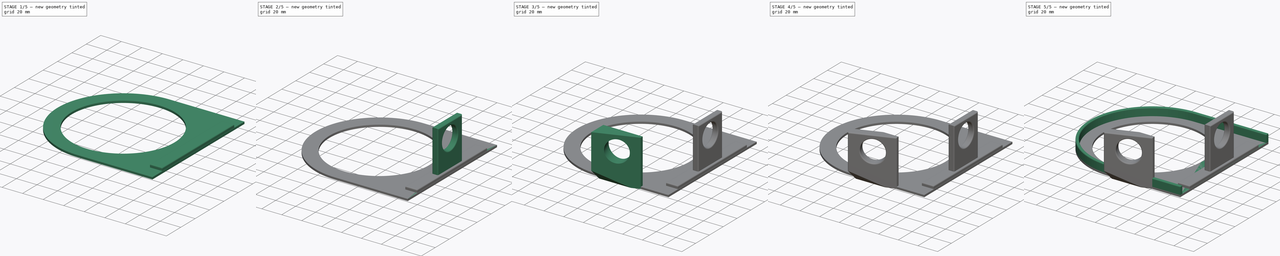
[diagram: build sequence overview — one tinted view per stage of 5, left to right]
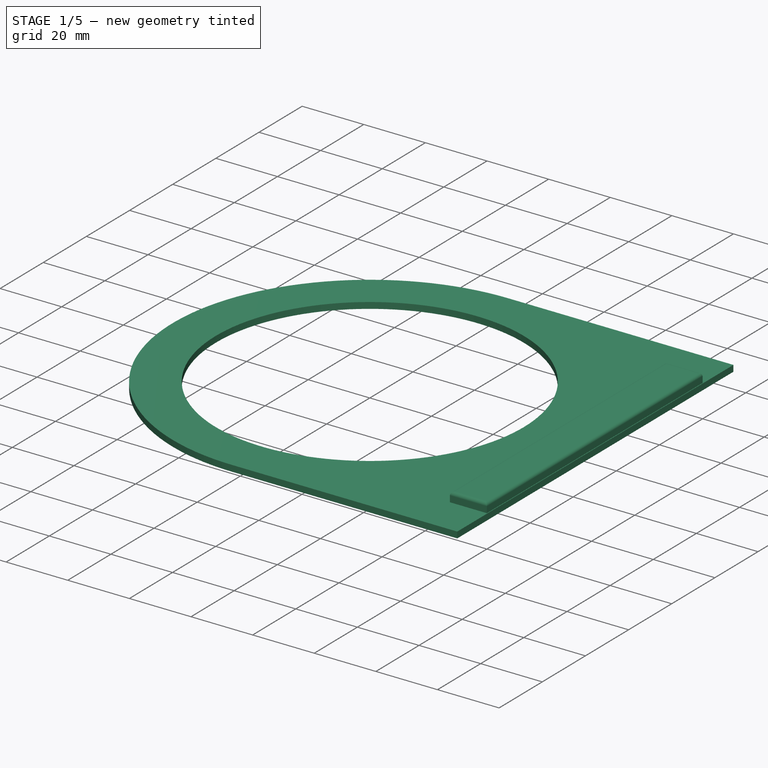
[diagram: stage 1 of 5 — iso view after this stage's code; geometry added in this stage tinted green]
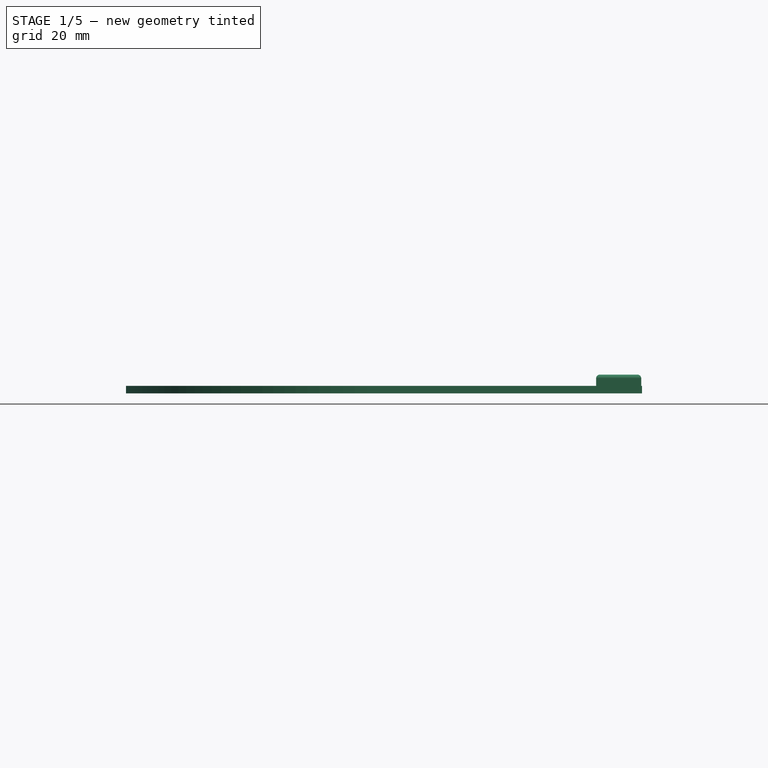
[diagram: stage 1 of 5 — front view after this stage's code; geometry added in this stage tinted green]
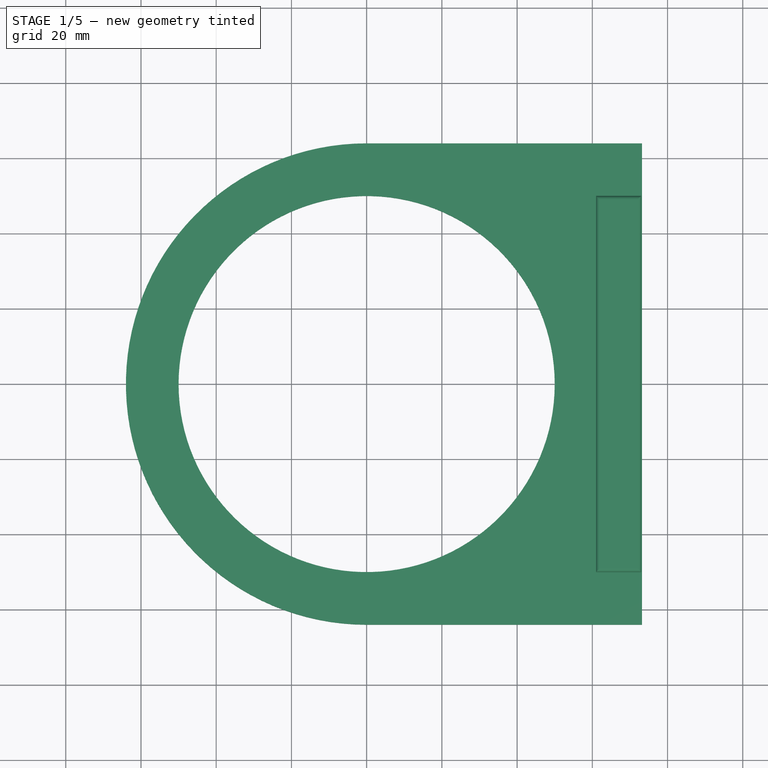
[diagram: stage 1 of 5 — top view after this stage's code; geometry added in this stage tinted green]
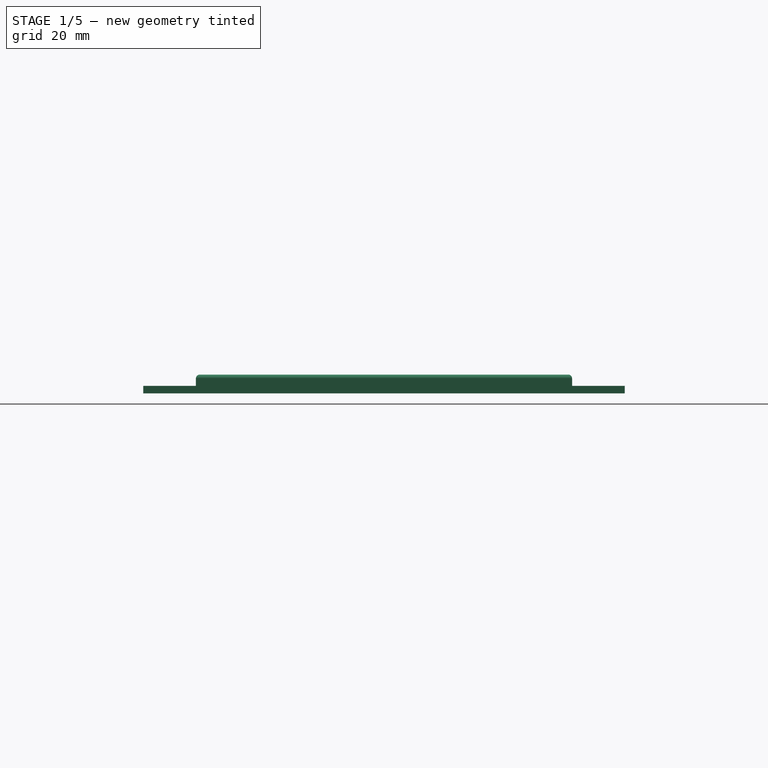
[diagram: stage 1 of 5 — right view after this stage's code; geometry added in this stage tinted green]
FCSTD DOCUMENT  (FreeCAD 0.16R)
Label: chainguard25T.03
License: All rights reserved
LicenseURL: http://en.wikipedia.org/wiki/All_rights_reserved
objects: Sketcher::SketchObject×9, PartDesign::Fillet×8, PartDesign::Pad×5, PartDesign::Pocket×4
note: 35 computed .brp shape members not serialized (recipe doc carries the construction recipe); baked Part::Feature solids carry a one-line shape summary decoded from their .brp

FEATURE [Sketcher::SketchObject] Sketch001
  sketch-geometry (5):
    g0: LineSegment StartX=73.2073 StartY=64 StartZ=0 EndX=-2.4e-11 EndY=64 EndZ=0
    g1: LineSegment StartX=73.2073 StartY=-64 StartZ=0 EndX=3e-12 EndY=-64 EndZ=0
    g2: ArcOfCircle CenterX=-7.71025e-07 CenterY=0 CenterZ=0 NormalX=0 NormalY=0 NormalZ=1 Radius=64 StartAngle=1.5708 EndAngle=4.71239
    g3: LineSegment StartX=73.2073 StartY=64 StartZ=0 EndX=73.2073 EndY=-64 EndZ=0
    g4: Circle CenterX=0 CenterY=0 CenterZ=0 NormalX=0 NormalY=0 NormalZ=1 Radius=50
  constraints (13):
    c: Horizontal(g0)
    c: Horizontal(g1)
    c: Coincident(g2,g1)
    c: Coincident(g0,g2)
    c: DistanceX(g1,g0) = 0
    c: Equal(g0,g1)
    c: DistanceY(g1,g0) = 128
    c: Radius(g2) = 64
    c: Vertical(g3)
    c: Coincident(g1,g3)
    c: Symmetric(g1,g0,g-1)
    c: Radius(g4) = 50
    c: Coincident(g4,g-1)
FEATURE [PartDesign::Pad] Pad  label="Faceplate"
  Length = 2
  Length2 = 100
  Reversed = true
  Sketch = -> Sketch001
  Type = 0
FEATURE [Sketcher::SketchObject] Sketch
  Support = -> Pad [Face6]
  sketch-geometry (4):
    g0: LineSegment StartX=63 StartY=50 StartZ=0 EndX=73 EndY=50 EndZ=0
    g1: LineSegment StartX=73 StartY=50 StartZ=0 EndX=73 EndY=-50 EndZ=0
    g2: LineSegment StartX=73 StartY=-50 StartZ=0 EndX=63 EndY=-50 EndZ=0
    g3: LineSegment StartX=63 StartY=-50 StartZ=0 EndX=63 EndY=50 EndZ=0
  constraints (12):
    c: Coincident(g0,g1)
    c: Coincident(g1,g2)
    c: Coincident(g2,g3)
    c: Coincident(g3,g0)
    c: Horizontal(g0)
    c: Horizontal(g2)
    c: Vertical(g1)
    c: Vertical(g3)
    c: DistanceX(g0,g0) = 10
    c: DistanceY(g3,g3) = 100
    c: DistanceY(g-1,g0) = 50
    c: DistanceX(g-1,g0) = 63
FEATURE [PartDesign::Pad] Pad004  label="SyncBossStiffener"
  Length = 3
  Length2 = 100
  Sketch = -> Sketch
  Type = 0
FEATURE [PartDesign::Fillet] Fillet007  label="SyncBossFillet"
  Base = -> Pad004 [Edge26,Edge25,Edge23,Edge20]
  Radius = 1
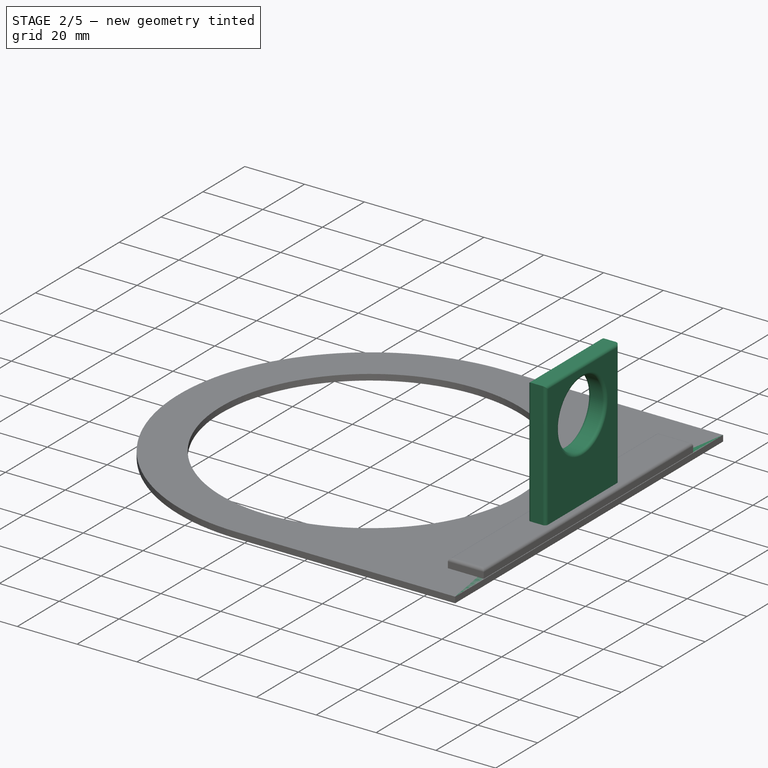
[diagram: stage 2 of 5 — iso view after this stage's code; geometry added in this stage tinted green]
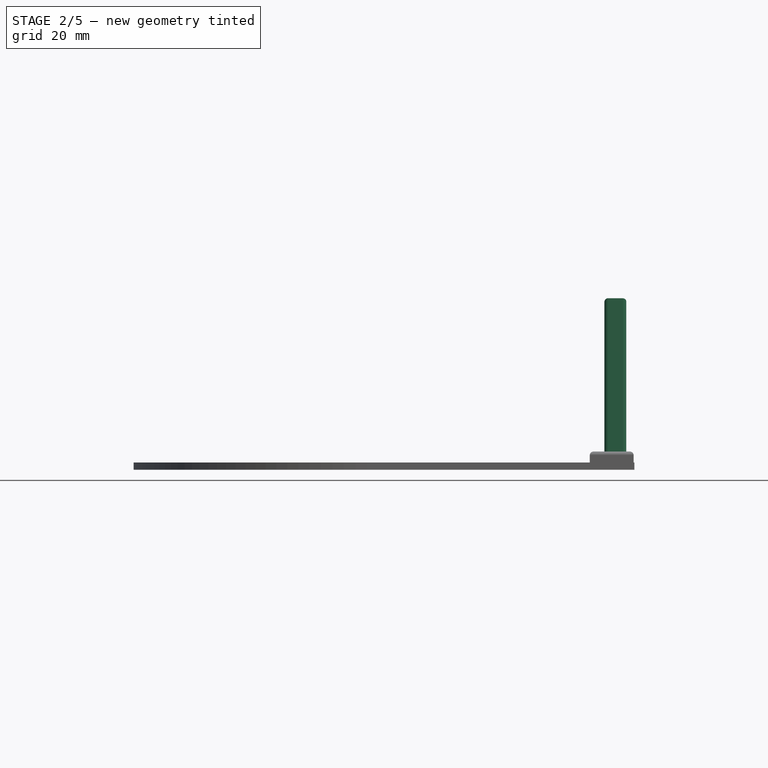
[diagram: stage 2 of 5 — front view after this stage's code; geometry added in this stage tinted green]
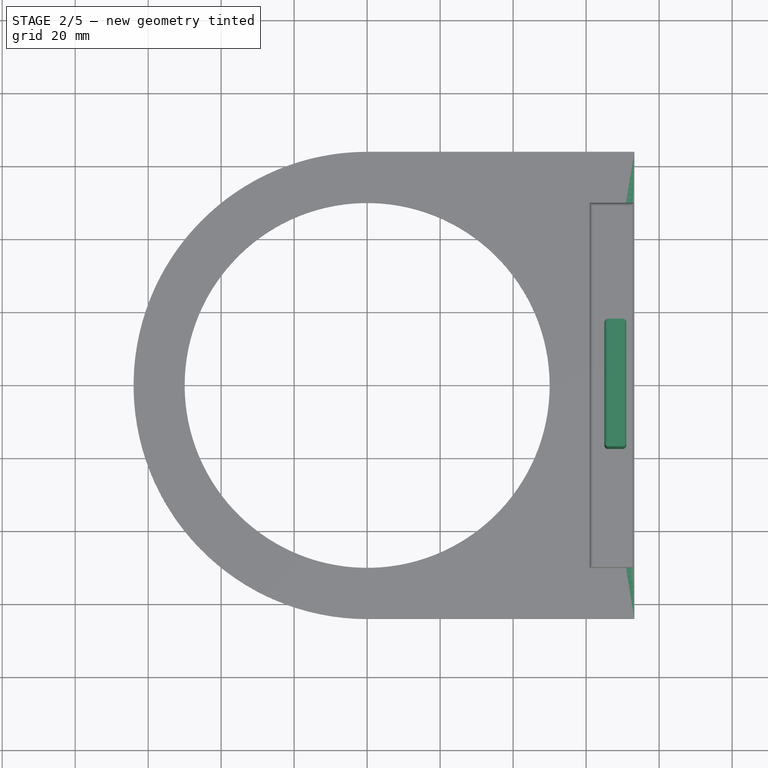
[diagram: stage 2 of 5 — top view after this stage's code; geometry added in this stage tinted green]
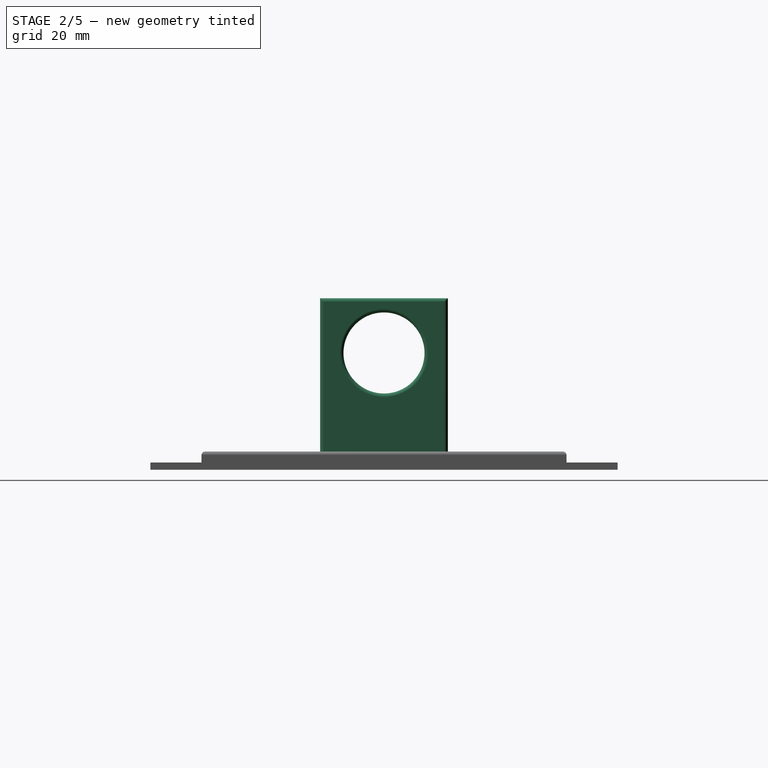
[diagram: stage 2 of 5 — right view after this stage's code; geometry added in this stage tinted green]
FEATURE [Sketcher::SketchObject] Sketch008
  Support = -> Pad [Face6]
  sketch-geometry (4):
    g0: LineSegment StartX=65 StartY=17.5 StartZ=0 EndX=71 EndY=17.5 EndZ=0
    g1: LineSegment StartX=71 StartY=17.5 StartZ=0 EndX=71 EndY=-17.5 EndZ=0
    g2: LineSegment StartX=71 StartY=-17.5 StartZ=0 EndX=65 EndY=-17.5 EndZ=0
    g3: LineSegment StartX=65 StartY=-17.5 StartZ=0 EndX=65 EndY=17.5 EndZ=0
  constraints (12):
    c: Coincident(g0,g1)
    c: Coincident(g1,g2)
    c: Coincident(g2,g3)
    c: Coincident(g3,g0)
    c: Horizontal(g0)
    c: Horizontal(g2)
    c: Vertical(g1)
    c: Vertical(g3)
    c: Distance(g1) = 35
    c: Distance(g0) = 6
    c: DistanceY(g2,g-1) = 17.5
    c: DistanceX(g-1,g2) = 65
FEATURE [PartDesign::Pad] Pad003  label="SyncTubeBoss"
  Length = 45
  Length2 = 100
  Sketch = -> Sketch008
  Type = 0
FEATURE [Sketcher::SketchObject] Sketch009
  Placement = pos=(71,0,0) rot=(0.57735,0.57735,0.57735;2.0944rad)
  Support = -> Pad003 [Face9]
  sketch-geometry (1):
    g0: Circle CenterX=0 CenterY=30 CenterZ=0 NormalX=0 NormalY=0 NormalZ=1 Radius=11.1
  constraints (3):
    c: Radius(g0) = 11.1
    c: Distance(g-1,g0) = 30
    c: DistanceX(g-1,g0) = 0
FEATURE [PartDesign::Pocket] Pocket003  label="SyncTubeHole"
  Length = 5
  Sketch = -> Sketch009
  Type = 1
FEATURE [PartDesign::Fillet] Fillet002
  Base = -> Pocket003 [Edge25,Edge14,Edge26,Edge23,Edge27]
  Radius = 1
FEATURE [PartDesign::Fillet] Fillet006
  Base = -> Fillet002 [Edge13,Edge3,Edge18,Edge19,Edge20]
  Radius = 1
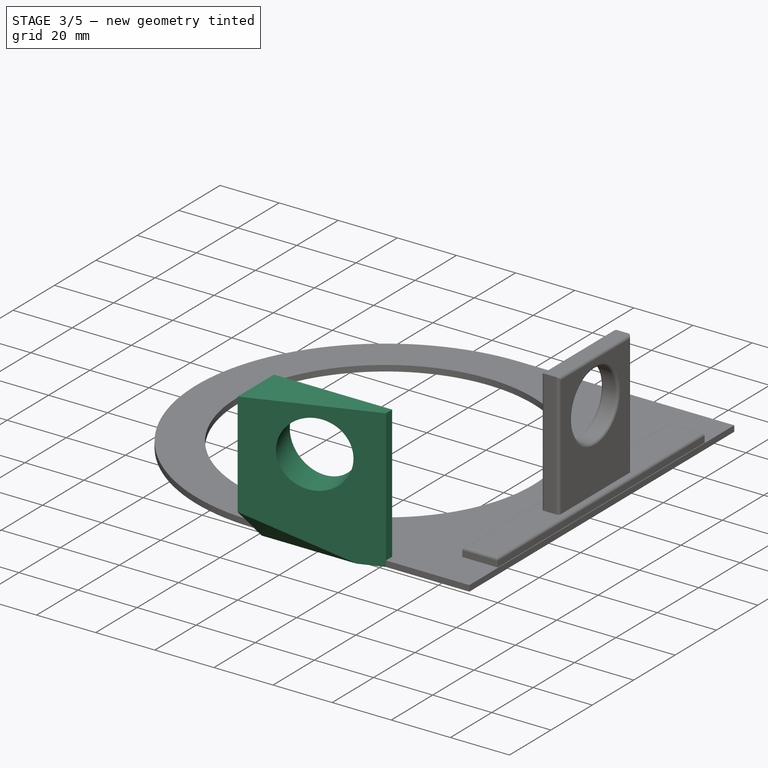
[diagram: stage 3 of 5 — iso view after this stage's code; geometry added in this stage tinted green]
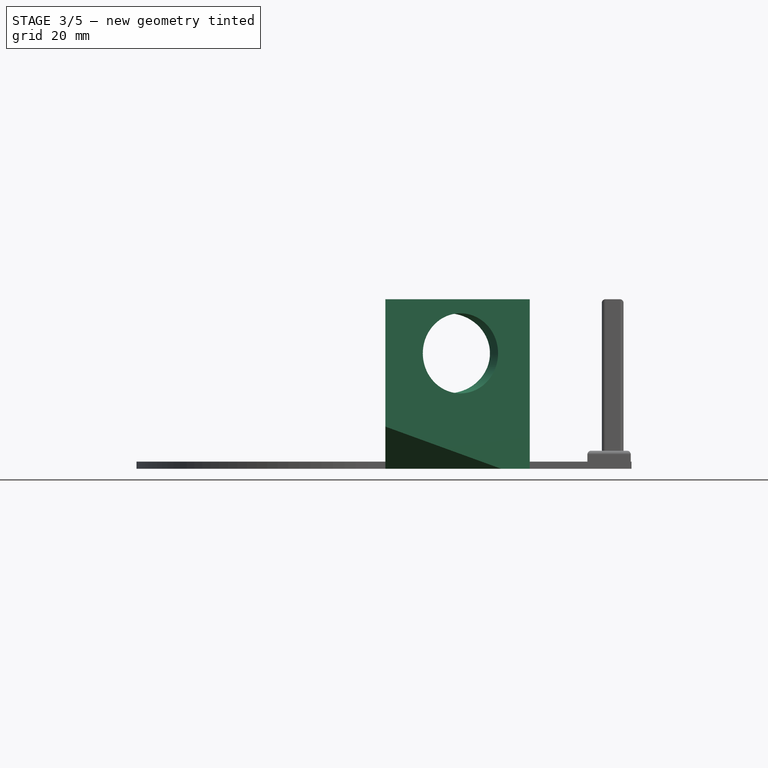
[diagram: stage 3 of 5 — front view after this stage's code; geometry added in this stage tinted green]
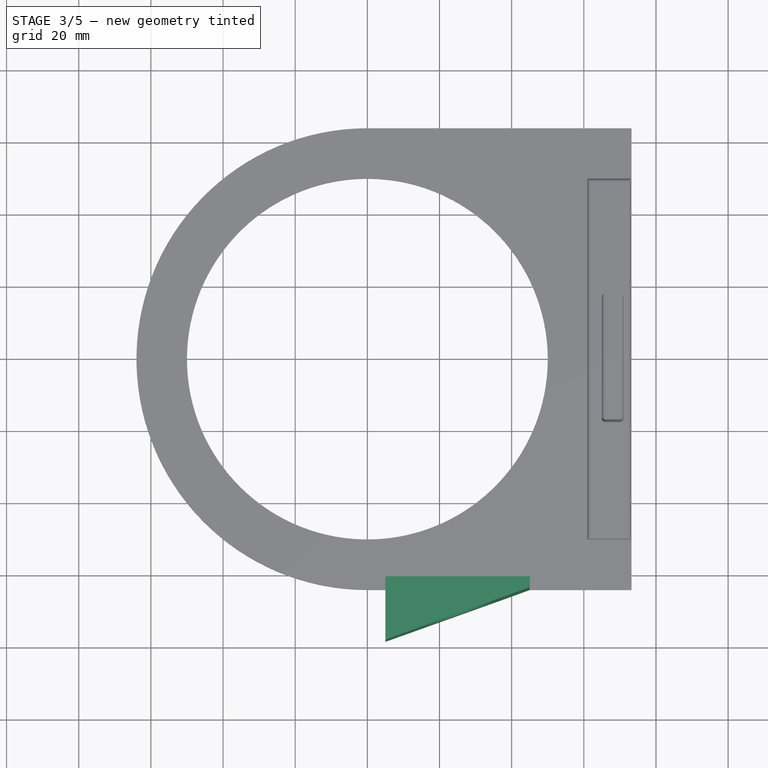
[diagram: stage 3 of 5 — top view after this stage's code; geometry added in this stage tinted green]
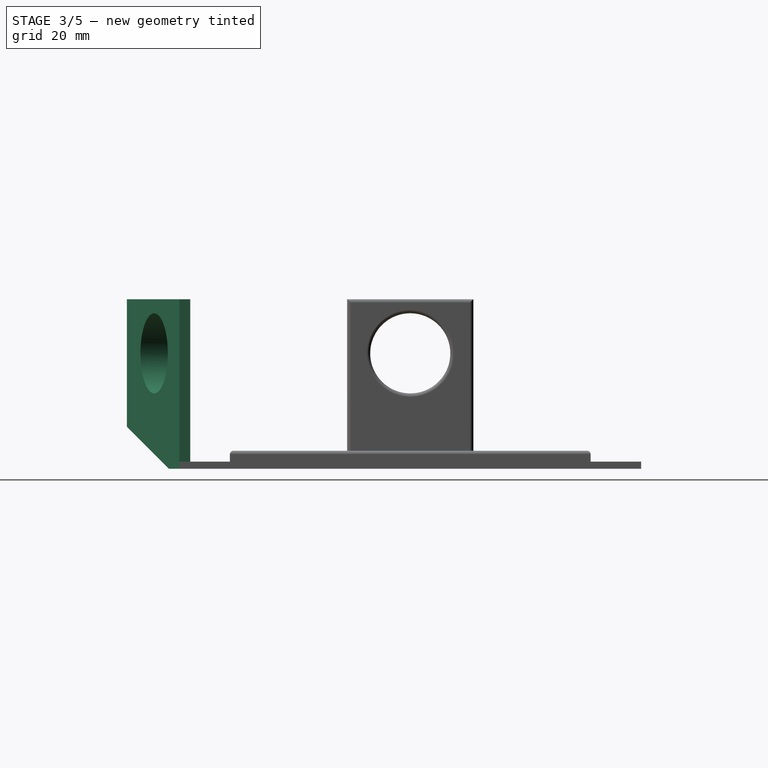
[diagram: stage 3 of 5 — right view after this stage's code; geometry added in this stage tinted green]
FEATURE [Sketcher::SketchObject] Sketch004  label="BossST"
  sketch-geometry (4):
    g0: LineSegment StartX=45 StartY=-61 StartZ=0 EndX=5 EndY=-61 EndZ=0
    g1: LineSegment StartX=5 StartY=-61 StartZ=0 EndX=5 EndY=-78.5588 EndZ=0
    g2: LineSegment StartX=45 StartY=-64 StartZ=0 EndX=45 EndY=-61 EndZ=0
    g3: LineSegment StartX=5 StartY=-78.5588 StartZ=0 EndX=45 EndY=-64 EndZ=0
  constraints (12):
    c: Coincident(g0,g1)
    c: Vertical(g1)
    c: Vertical(g2)
    c: DistanceX(g0,g0) = 40
    c: DistanceX(g-1,g1) = 5
    c: Angle(g3) = 0.349066
    c: DistanceY(g0,g-1) = 61
    c: Horizontal(g0)
    c: DistanceY(g2,g2) = 3
    c: Coincident(g2,g0)
    c: Coincident(g3,g2)
    c: Coincident(g1,g3)
FEATURE [PartDesign::Pad] Pad002  label="STboss"
  Length = 45
  Length2 = 2
  Sketch = -> Sketch004
  Type = 4
FEATURE [Sketcher::SketchObject] Sketch005
  Placement = pos=(25.8332,-70.9761,0) rot=(0.970288,0.171088,0.171088;1.60095rad)
  Support = -> Pad002 [Face3]
  sketch-geometry (1):
    g0: Circle CenterX=-0.0348267 CenterY=30 CenterZ=0 NormalX=0 NormalY=0 NormalZ=1 Radius=11.1
  constraints (2):
    c: Radius(g0) = 11.1
    c: DistanceY(g-1,g0) = 30
FEATURE [PartDesign::Pocket] Pocket  label="SThole"
  Length = 5
  Sketch = -> Sketch005
  Type = 1
FEATURE [Sketcher::SketchObject] Sketch006
  Placement = pos=(5,0,0) rot=(0.57735,-0.57735,-0.57735;2.0944rad)
  Support = -> Pocket [Face5]
  sketch-geometry (4):
    g0: LineSegment StartX=54.9217 StartY=-13.9475 StartZ=0 EndX=105.758 EndY=-27.5691 EndZ=0
    g1: LineSegment StartX=105.758 StartY=-27.5691 StartZ=0 EndX=92.1366 EndY=23.2674 EndZ=0
    g2: LineSegment StartX=92.1366 StartY=23.2674 StartZ=0 EndX=54.9217 EndY=-13.9475 EndZ=0
    g3: Circle [constr] CenterX=84.2722 CenterY=-6.08307 CenterZ=0 NormalX=0 NormalY=0 NormalZ=1 Radius=30.3858
  constraints (12):
    c: Coincident(g0,g1)
    c: Coincident(g1,g2)
    c: Coincident(g2,g0)
    c: Equal(g0,g1)
    c: Equal(g0,g2)
    c: PointOnObject(g0,g3)
    c: PointOnObject(g1,g3)
    c: PointOnObject(g2,g3)
    c: Angle(g2) = -2.35619
    c: Distance(g2) = 52.6298
    c: DistanceX(g-1,g0) = 54.9217
    c: DistanceY(g0,g-1) = 13.9475
FEATURE [PartDesign::Pocket] Pocket001  label="STpocket0"
  Length = 5
  Sketch = -> Sketch006
  Type = 1
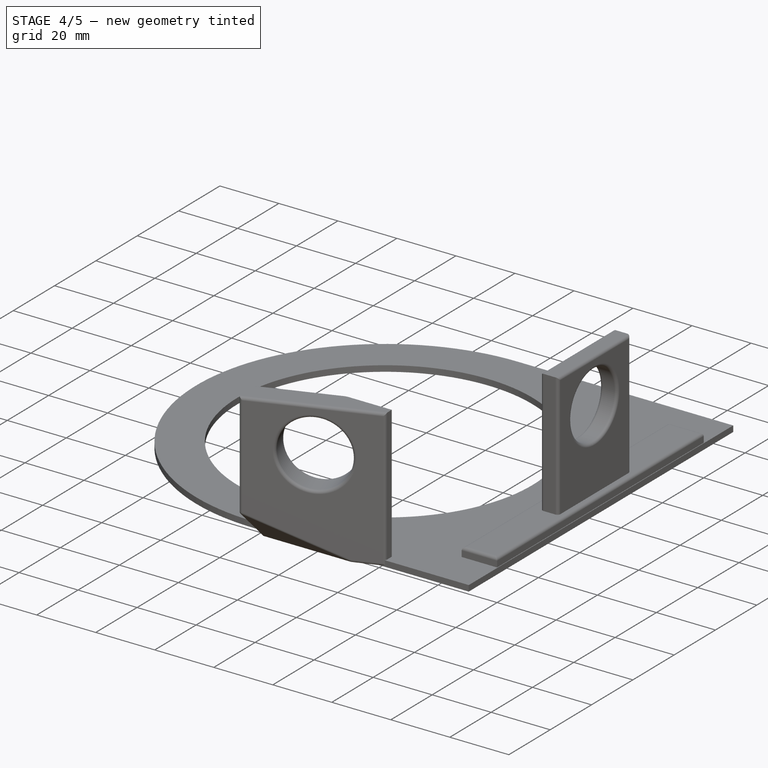
[diagram: stage 4 of 5 — iso view after this stage's code; geometry added in this stage tinted green]
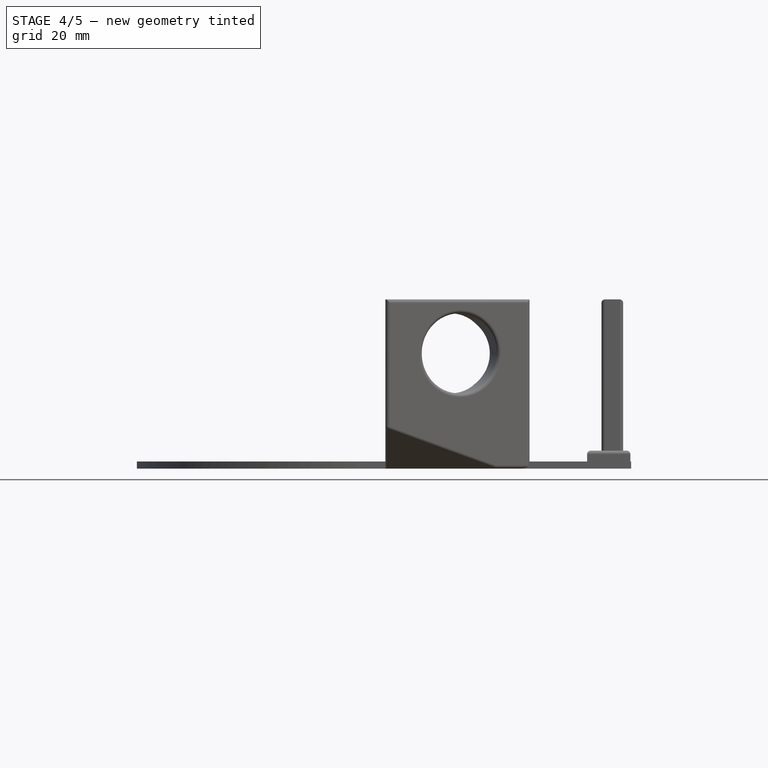
[diagram: stage 4 of 5 — front view after this stage's code; geometry added in this stage tinted green]
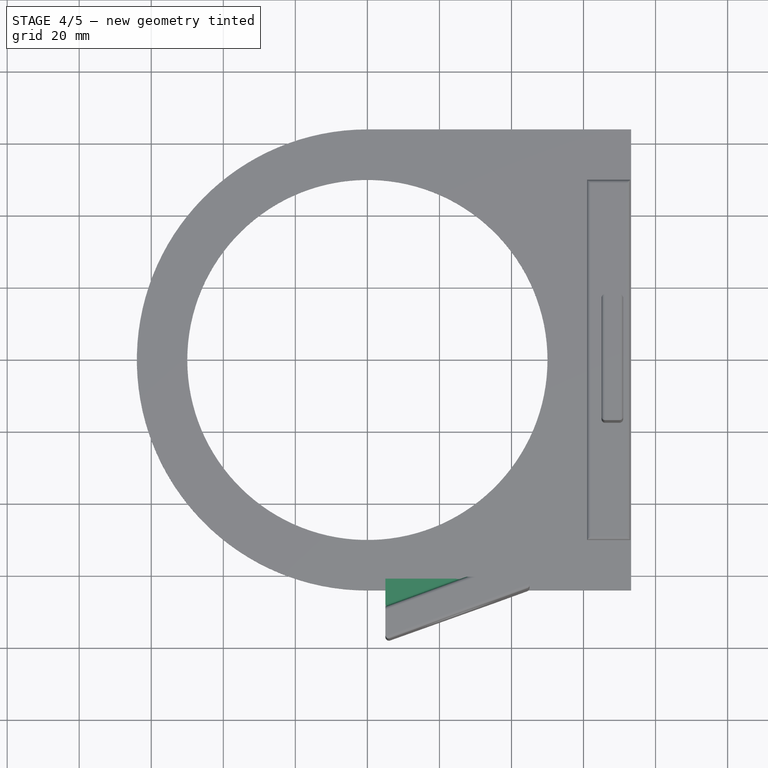
[diagram: stage 4 of 5 — top view after this stage's code; geometry added in this stage tinted green]
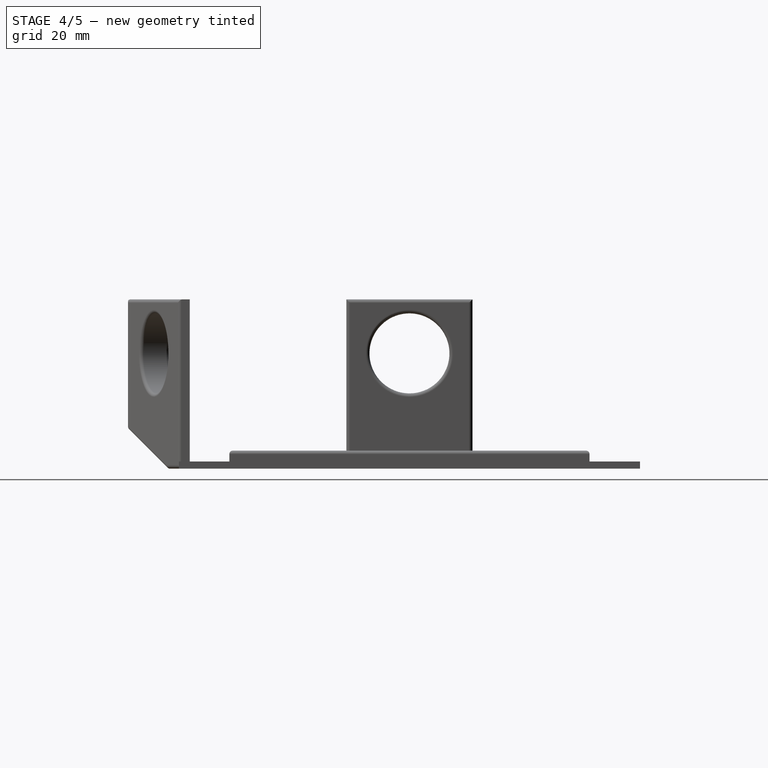
[diagram: stage 4 of 5 — right view after this stage's code; geometry added in this stage tinted green]
FEATURE [Sketcher::SketchObject] Sketch007
  ExternalGeometry = -> [Pocket001]
  Placement = pos=(0,0,45) rot=(0,0,1;0rad)
  Support = -> Pocket001 [Face4]
  sketch-geometry (4):
    g0: LineSegment StartX=-4.66376 StartY=-54.3774 StartZ=0 EndX=-2.14442 EndY=-71.7516 EndZ=0
    g1: LineSegment StartX=-2.14442 StartY=-71.7516 StartZ=0 EndX=41.1328 EndY=-56 EndZ=0
    g2: LineSegment StartX=41.1328 StartY=-56 StartZ=0 EndX=37.1097 EndY=-55.1054 EndZ=0
    g3: LineSegment StartX=37.1097 StartY=-55.1054 StartZ=0 EndX=-4.66376 EndY=-54.3774 EndZ=0
  constraints (12):
    c: Coincident(g0,g1)
    c: Coincident(g1,g2)
    c: Coincident(g2,g3)
    c: Parallel(g1,g-3)
    c: DistanceY(g-3,g1) = 8
    c: Coincident(g0,g3)
    c: DistanceX(g1,g-3) = 3.86725
    c: Distance(g3) = 41.7798
    c: Distance(g0) = 17.5559
    c: Distance(g1) = 46.0546
    c: Distance(g2) = 4.12132
    c: DistanceX(g0,g-1) = 4.66376
FEATURE [PartDesign::Pocket] Pocket002  label="STpocket1"
  Length = 30
  Sketch = -> Sketch007
  Type = 0
FEATURE [PartDesign::Fillet] Fillet003
  Base = -> Pocket002 [Edge27,Edge11,Edge26,Edge25,Edge15,Edge23]
  Radius = 1
FEATURE [PartDesign::Fillet] Fillet004
  Base = -> Fillet003 [Edge22,Edge23,Edge4,Edge13]
  Radius = 1
FEATURE [PartDesign::Fillet] Fillet005
  Base = -> Fillet004 [Edge52,Edge27,Edge55,Edge24,Edge54,Edge35]
  Radius = 1
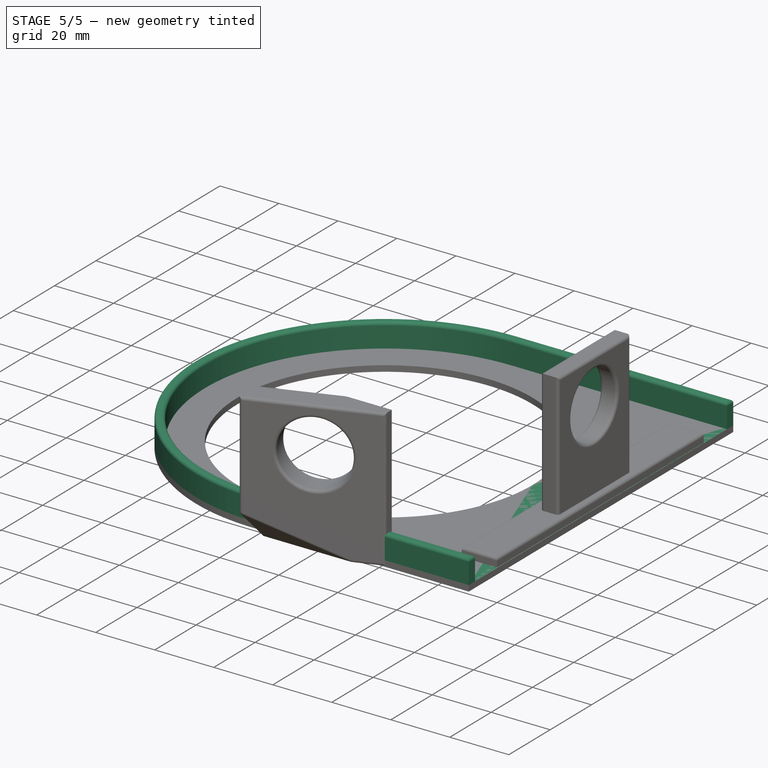
[diagram: stage 5 of 5 — iso view after this stage's code; geometry added in this stage tinted green]
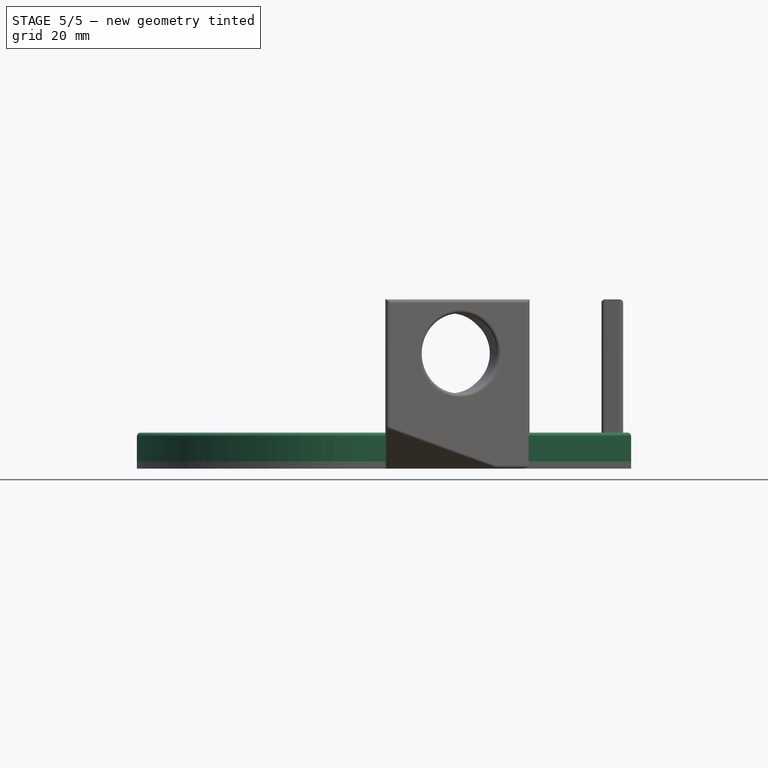
[diagram: stage 5 of 5 — front view after this stage's code; geometry added in this stage tinted green]
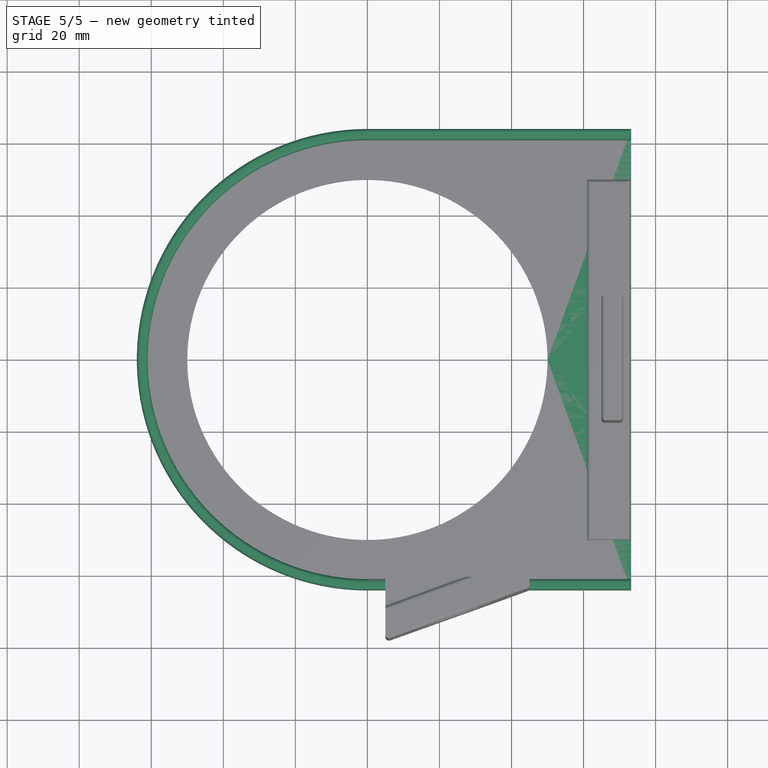
[diagram: stage 5 of 5 — top view after this stage's code; geometry added in this stage tinted green]
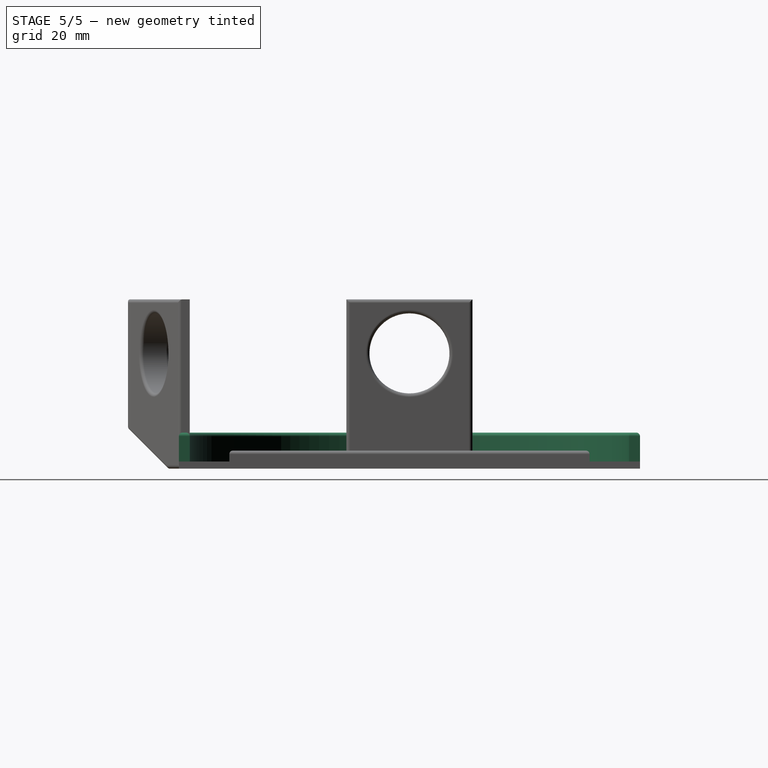
[diagram: stage 5 of 5 — right view after this stage's code; geometry added in this stage tinted green]
FEATURE [Sketcher::SketchObject] Sketch002
  sketch-geometry (8):
    g0: LineSegment StartX=73.202 StartY=64 StartZ=0 EndX=0 EndY=64 EndZ=0
    g1: LineSegment StartX=73.202 StartY=-64 StartZ=0 EndX=0 EndY=-64 EndZ=0
    g2: ArcOfCircle CenterX=3.13138e-06 CenterY=0 CenterZ=0 NormalX=0 NormalY=0 NormalZ=1 Radius=64 StartAngle=1.5708 EndAngle=4.71239
    g3: LineSegment StartX=0 StartY=61 StartZ=0 EndX=73.202 EndY=61 EndZ=0
    g4: LineSegment StartX=0 StartY=-61 StartZ=0 EndX=73.202 EndY=-61 EndZ=0
    g5: LineSegment StartX=73.202 StartY=64 StartZ=0 EndX=73.202 EndY=61 EndZ=0
    g6: LineSegment StartX=73.202 StartY=-61 StartZ=0 EndX=73.202 EndY=-64 EndZ=0
    g7: ArcOfCircle CenterX=-7.37069e-05 CenterY=0 CenterZ=0 NormalX=0 NormalY=0 NormalZ=1 Radius=61 StartAngle=1.5708 EndAngle=4.71239
  constraints (25):
    c: Horizontal(g0)
    c: Horizontal(g1)
    c: Coincident(g2,g1)
    c: Coincident(g0,g2)
    c: DistanceX(g1,g0) = 0
    c: Equal(g0,g1)
    c: DistanceY(g1,g0) = 128
    c: Radius(g2) = 64
    c: Symmetric(g1,g0,g-1)
    c: Radius(g7) = 61
    c: Parallel(g0,g3)
    c: DistanceY(g3,g0) = 3
    c: DistanceY(g1,g4) = 3
    c: Parallel(g4,g1)
    c: DistanceX(g0,g3) = 0
    c: DistanceX(g4) = 0
    c: DistanceX(g0) = 73.202
    c: Equal(g3,g0)
    c: Equal(g4,g0)
    c: Coincident(g4,g6)
    c: Coincident(g6,g1)
    c: Coincident(g5,g3)
    c: Coincident(g5,g0)
    c: Coincident(g7,g3)
    c: Coincident(g7,g4)
FEATURE [PartDesign::Pad] Pad001  label="Connector"
  Length = 8
  Length2 = 100
  Sketch = -> Sketch002
  Type = 0
FEATURE [PartDesign::Fillet] Fillet  label="fillet_connector"
  Base = -> Pad001 [Edge4,Edge7,Edge10,Edge13,Edge16,Edge19,Edge22,Edge24]
  Radius = 1
FEATURE [PartDesign::Fillet] Fillet001  label="Fillet_face"
  Base = -> Pad [Edge4,Edge7,Edge10,Edge12,Edge15]
  Radius = 1
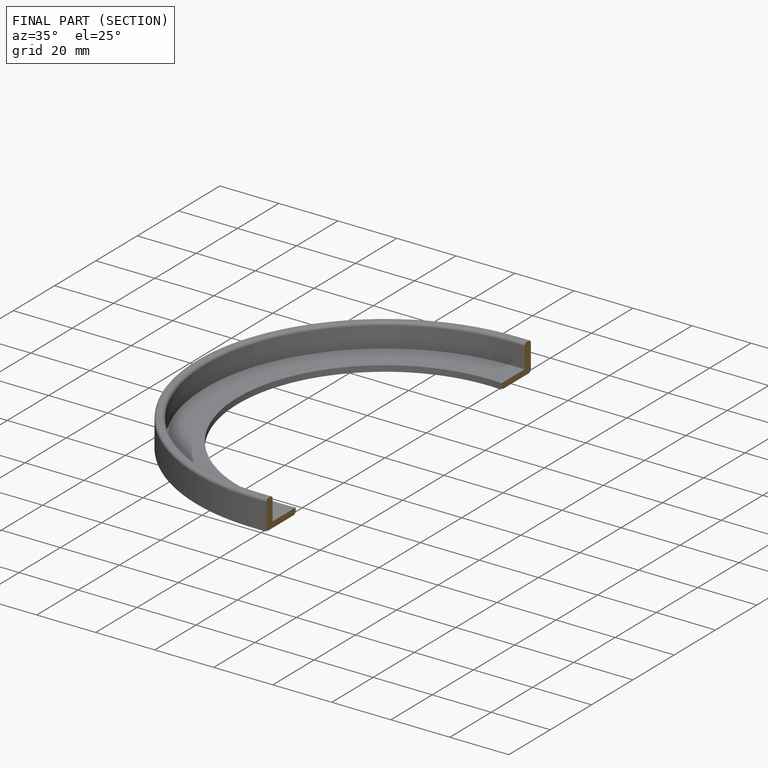
[diagram: finished part — half-section view (interior)]
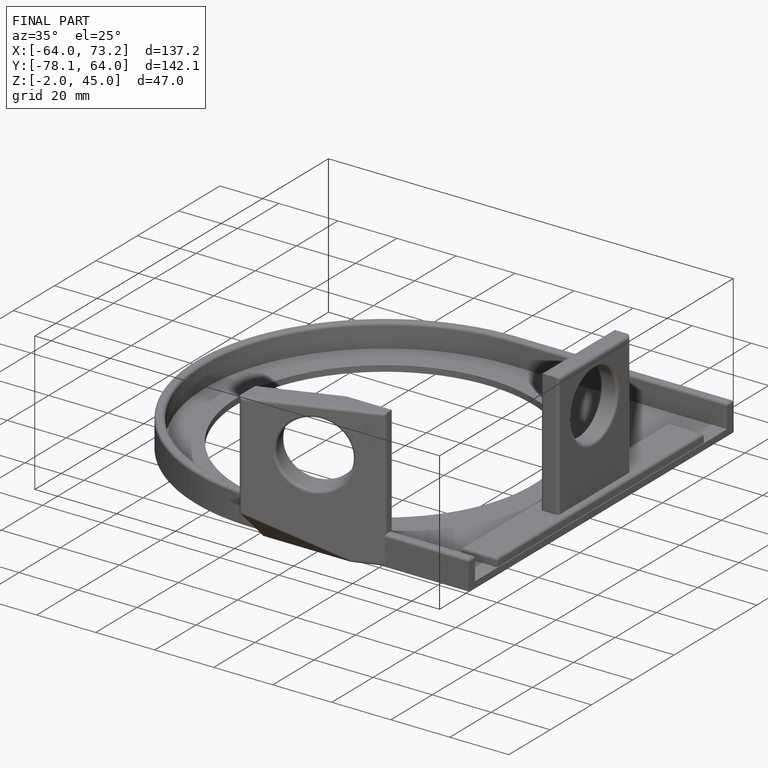
[diagram: finished part — iso view with bounding-box wireframe]
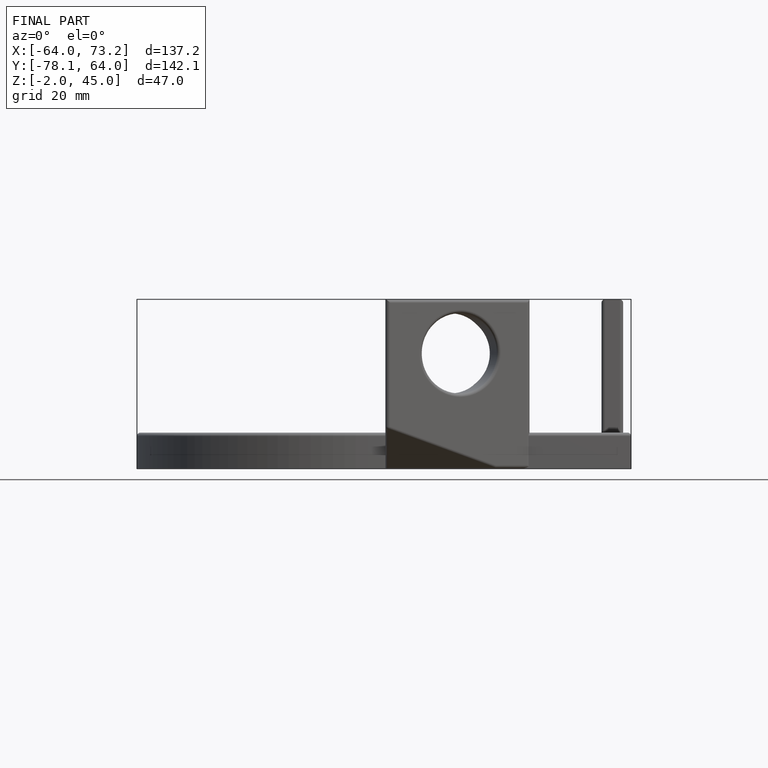
[diagram: finished part — front view with bounding-box wireframe]
